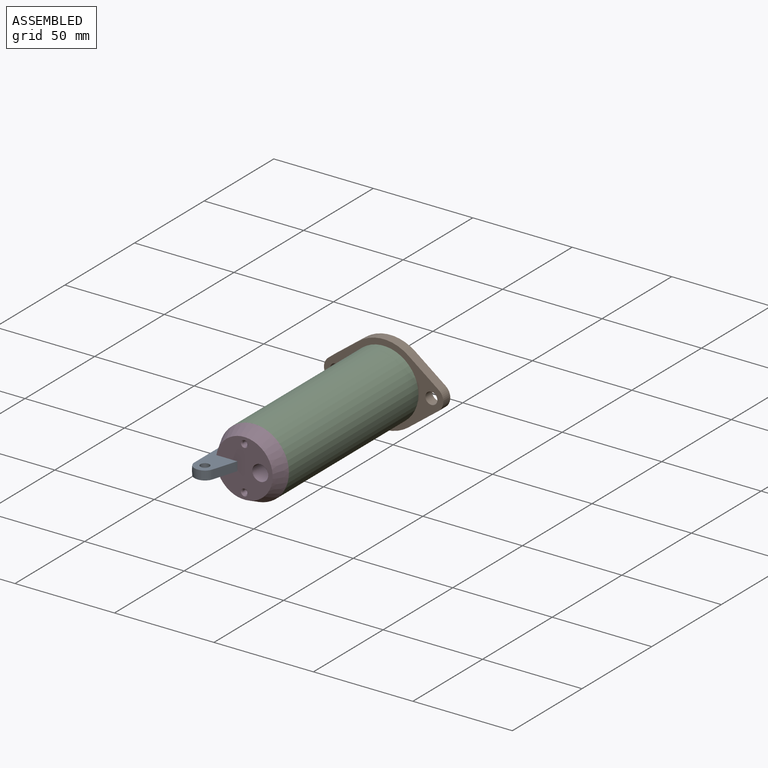
[diagram: assembled view]
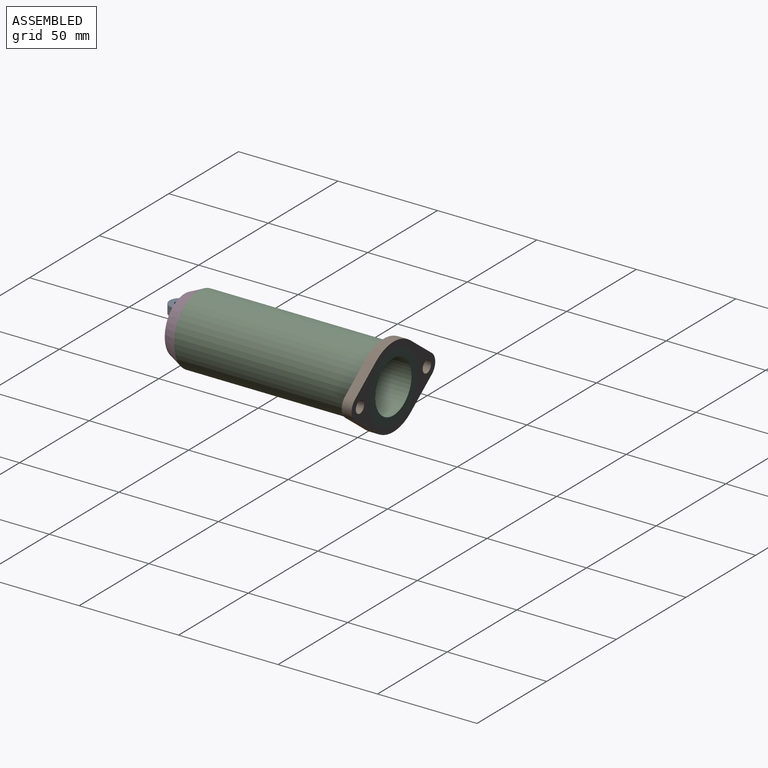
[diagram: assembled view, second angle]
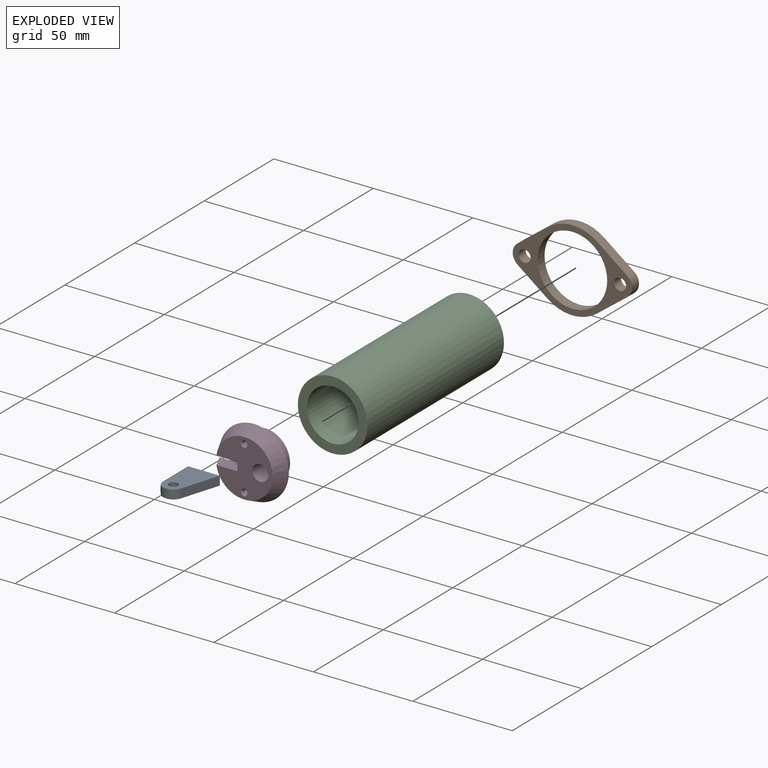
[diagram: exploded view]
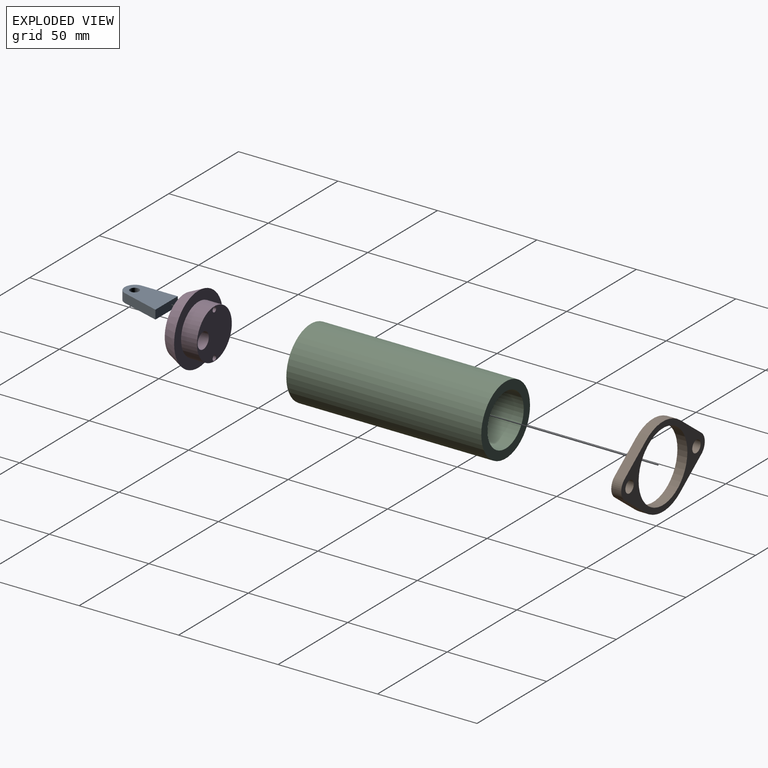
[diagram: exploded view, second angle]
ASSEMBLY  parts=4 mates=3
PART A: 9 faces, bbox 16.4x23x6.4 mm
  f0: plane 16.14x4.5mm, normal (0,1,0), area 72.4mm2, adj f1,f3,f4,f5
  f1: plane 19.46x5.95mm, normal (0.96,-0.29,0), area 91.6mm2, adj f0,f3,f4,f7
  f2: plane 4.5x0.41mm, normal (0,-1,0), area 1.5mm2, adj f3,f4,f6,f7
  f3: plane 23x16mm, normal (0,0,-1), area 263.1mm2, adj f0,f1,f2,f5,f6,f7,f8
  f4: plane 23x16mm, normal (0,0,1), area 263.1mm2, adj f0,f1,f2,f5,f6,f7,f8
  f5: cylinder r=17.5mm len=18mm, axis (0,1,0), area 81.2mm2, adj f0,f3,f4,f6
  f6: torus R=12.5mm, axis (0,-1,0), area 35.5mm2, adj f2,f3,f4,f5
  f7: cylinder r=5mm len=4.78mm, axis (0,0,-1), area 28.7mm2, adj f1,f2,f3,f4
  f8: cylinder r=2.25mm len=4.5mm, axis (0,0,1), area 63.6mm2, adj f3,f4
PART B: 13 faces, bbox 60x5x41 mm
  f0: plane 15.24x11.55mm, normal (0.6,0,-0.8), area 95.6mm2, adj f1,f9,f11,f12
  f1: cylinder r=20.5mm len=24.77mm, axis (0,-1,0), area 133mm2, adj f0,f2,f11,f12
  f2: plane 15.24x11.55mm, normal (-0.6,0,-0.8), area 95.6mm2, adj f1,f3,f11,f12
  f3: cylinder r=6mm len=9.56mm, axis (0,-1,0), area 55.3mm2, adj f2,f4,f11,f12
  f4: plane 15.24x11.55mm, normal (-0.6,0,0.8), area 95.6mm2, adj f3,f5,f11,f12
  f5: cylinder r=20.5mm len=24.77mm, axis (0,-1,0), area 133mm2, adj f4,f6,f11,f12
  f6: plane 15.24x11.55mm, normal (0.6,0,0.8), area 95.6mm2, adj f5,f9,f11,f12
  f7: cylinder r=3mm len=6mm, axis (0,-1,0), area 94.2mm2, adj f11,f12
  f8: cylinder r=3mm len=6mm, axis (0,-1,0), area 94.2mm2, adj f11,f12
  f9: cylinder r=6mm len=9.56mm, axis (0,-1,0), area 55.3mm2, adj f0,f6,f11,f12
  f10: cylinder r=17.5mm len=35mm, axis (0,-1,0), area 549.8mm2, adj f11,f12
  f11: plane 60x41mm, normal (0,1,0), area 606.6mm2, adj f0,f1,f2,f3,f4,f5,f6,f7
  f12: plane 60x41mm, normal (0,-1,0), area 606.6mm2, adj f0,f1,f2,f3,f4,f5,f6,f7
PART C: 4 faces, bbox 35x98x35 mm
  f0: cylinder r=17.5mm len=98mm, axis (0,1,0), area 10775.7mm2, adj f1,f2
  f1: plane 35x35mm, normal (0,-1,0), area 431.2mm2, adj f0,f3
  f2: plane 35x35mm, normal (0,1,0), area 431.2mm2, adj f0,f3
  f3: cylinder r=13mm len=98mm, axis (0,-1,0), area 8004.8mm2, adj f1,f2
PART D: 14 faces, bbox 34.9x15x35 mm
  f0: cone r=17.5mm half-angle=25deg, axis (0,1,0), area 734.9mm2, adj f1,f2,f5,f6
  f1: plane 28.47x28.29mm, normal (0,-1,0), area 519.1mm2, adj f0,f5,f6,f8,f10,f12,f13
  f2: plane 35x34.85mm, normal (0,1,0), area 448.7mm2, adj f0,f3,f5,f6
  f3: cylinder r=12.5mm len=25mm, axis (0,-1,0), area 628.3mm2, adj f2,f4,f7
  f4: plane 25x25mm, normal (0,1,0), area 430.8mm2, adj f3,f9,f11,f13
  f5: plane 13.9x7.05mm, normal (0,0,1), area 85.4mm2, adj f0,f1,f2,f7,f8
  f6: plane 13.9x7.05mm, normal (0,0,-1), area 85.4mm2, adj f0,f1,f2,f7,f8
  f7: plane 9x4.5mm, normal (0,-1,0), area 40.2mm2, adj f3,f5,f6,f8
  f8: plane 7x4.5mm, normal (-1,0,0), area 31.5mm2, adj f1,f5,f6,f7
  f9: cylinder r=1.25mm len=14.5mm, axis (0,-1,0), area 113.9mm2, adj f4,f10
  f10: cone r=1.25mm half-angle=45deg, axis (0,-1,0), area 6.7mm2, adj f1,f9
  f11: cylinder r=1.25mm len=14.5mm, axis (0,-1,0), area 113.9mm2, adj f4,f12
  f12: cone r=1.25mm half-angle=45deg, axis (0,-1,0), area 6.7mm2, adj f1,f11
  f13: cylinder r=4mm len=15mm, axis (0,-1,0), area 377mm2, adj f1,f4
PLACE A t=(-9.26,19.97,-27.27)mm
PLACE B t=(-9.26,19.97,-27.27)mm
PLACE C t=(-9.26,19.97,-27.27)mm fixed
PLACE D t=(-9.26,19.97,-27.27)mm
MATE fastened B.f1 <-> C.f0  axis (0,1,0) through (-9.26,-43.53,-42.27)mm
MATE fastened D.f0 <-> C.f0  axis (0,-1,0) through (-9.26,-136.53,-42.27)mm
MATE fastened D.f2 <-> A.f0  axis (0,-1,0) through (-26.62,-136.53,-40.02)mm
